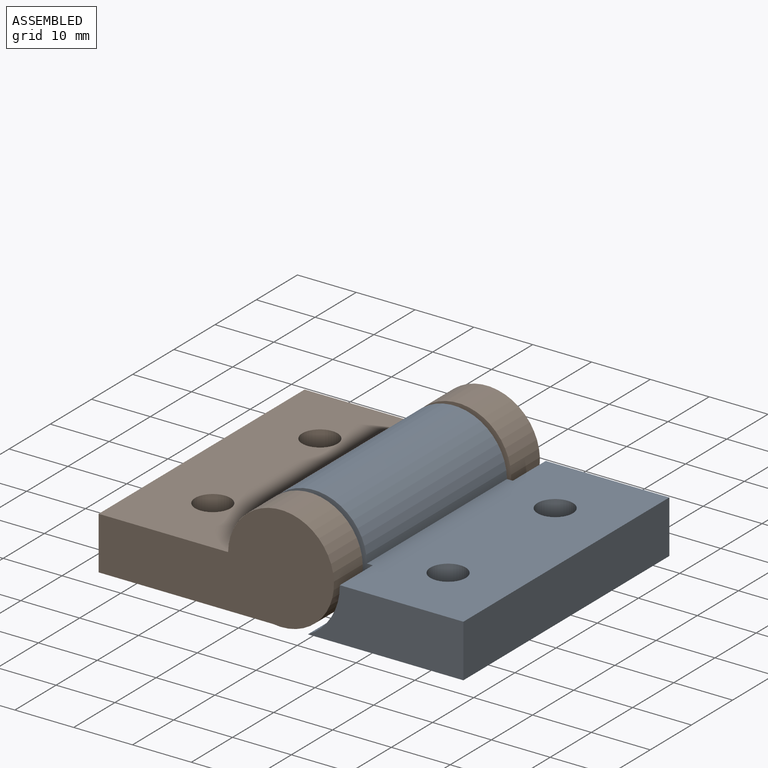
[diagram: assembled view]
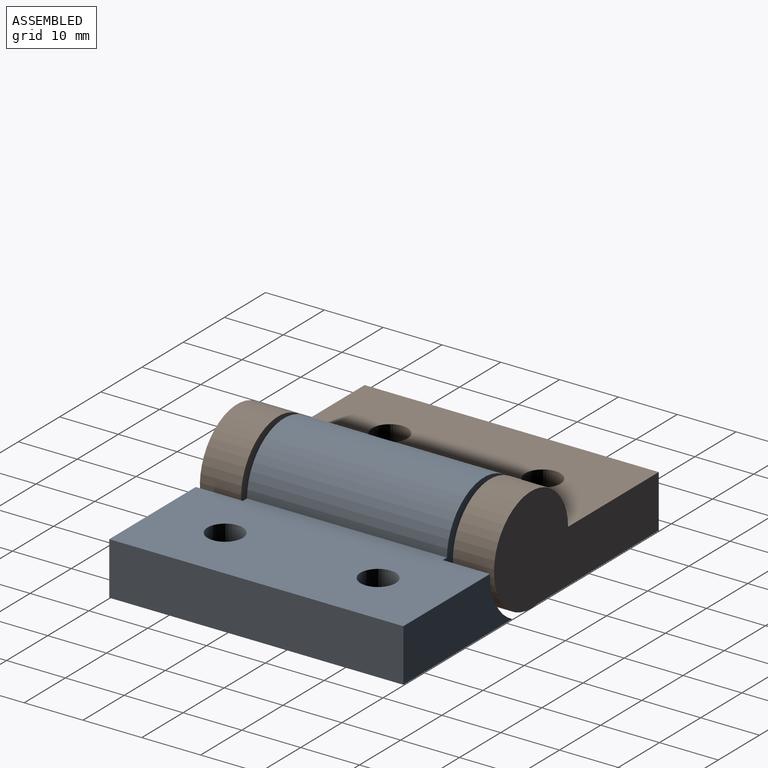
[diagram: assembled view, second angle]
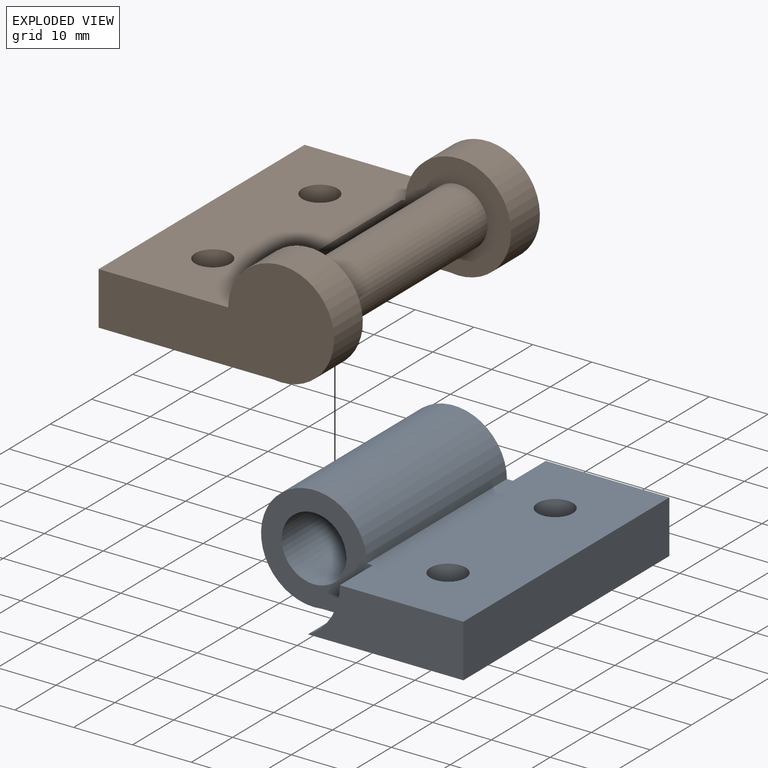
[diagram: exploded view]
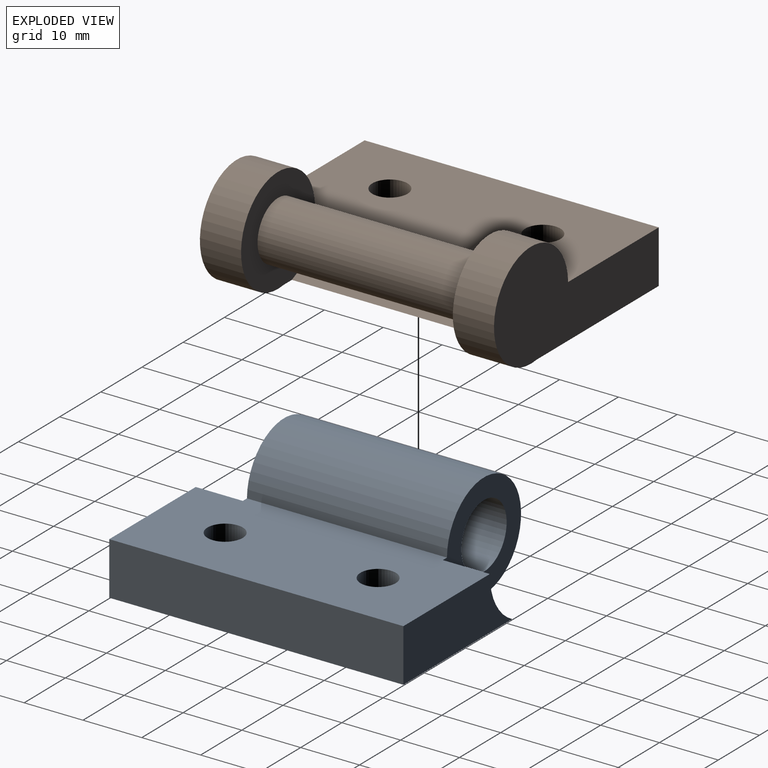
[diagram: exploded view, second angle]
ASSEMBLY  parts=2 mates=3
PART A: 13 faces, bbox 40x50x18 mm
  f0: cylinder r=9mm len=34mm, axis (0,-1,0), area 1485mm2, adj f2,f3,f9,f11
  f1: plane 26.43x9mm, normal (0,1,0), area 202.8mm2, adj f2,f3,f4,f10
  f2: plane 50x29.64mm, normal (0,0,-1), area 1374mm2, adj f0,f1,f4,f5,f6,f7,f8,f9
  f3: plane 50x22mm, normal (0,0,1), area 1027.5mm2, adj f0,f1,f4,f5,f6,f7,f8,f9
  f4: plane 50x9mm, normal (-1,0,0), area 450mm2, adj f1,f2,f3,f5
  f5: plane 26.43x9mm, normal (0,-1,0), area 202.8mm2, adj f2,f3,f4,f8
  f6: cylinder r=3mm len=9mm, axis (0,0,1), area 169.6mm2, adj f2,f3
  f7: cylinder r=3mm len=9mm, axis (0,0,1), area 169.6mm2, adj f2,f3
  f8: cylinder r=10mm len=9mm, axis (0,-1,0), area 88.5mm2, adj f2,f3,f5,f9
  f9: plane 19x18mm, normal (0,-1,0), area 171.2mm2, adj f0,f2,f3,f8,f12
  f10: cylinder r=10mm len=9mm, axis (0,1,0), area 88.5mm2, adj f1,f2,f3,f11
  f11: plane 19x18mm, normal (0,1,0), area 171.2mm2, adj f0,f2,f3,f10,f12
  f12: cylinder r=5.5mm len=34mm, axis (0,1,0), area 1175mm2, adj f9,f11
PART B: 13 faces, bbox 40x50x18 mm
  f0: plane 50x29.64mm, normal (0,0,-1), area 1354.4mm2, adj f1,f3,f4,f5,f6,f7,f8,f10
  f1: cylinder r=9mm len=18mm, axis (0,-1,0), area 305.7mm2, adj f0,f2,f5,f11
  f2: plane 50x22mm, normal (0,0,1), area 1025.5mm2, adj f1,f3,f4,f5,f6,f7,f8,f10
  f3: cylinder r=9mm len=18mm, axis (0,-1,0), area 305.7mm2, adj f0,f2,f6,f12
  f4: plane 50x9mm, normal (-1,0,0), area 450mm2, adj f0,f2,f5,f6
  f5: plane 40x18mm, normal (0,1,0), area 469mm2, adj f0,f1,f2,f4
  f6: plane 40x18mm, normal (0,-1,0), area 469mm2, adj f0,f2,f3,f4
  f7: cylinder r=3mm len=9mm, axis (0,0,1), area 169.6mm2, adj f0,f2
  f8: cylinder r=3mm len=9mm, axis (0,0,1), area 169.6mm2, adj f0,f2
  f9: cylinder r=5mm len=36mm, axis (0,-1,0), area 1131mm2, adj f11,f12
  f10: cylinder r=9.5mm len=36mm, axis (0,-1,0), area 418.3mm2, adj f0,f2,f11,f12
  f11: plane 18.5x18mm, normal (0,-1,0), area 182mm2, adj f0,f1,f2,f9,f10
  f12: plane 18.5x18mm, normal (0,1,0), area 182mm2, adj f0,f2,f3,f9,f10
PLACE A rot(axis=(0,0,1),180deg) t=(47.19,31.5,9)mm
PLACE B t=(-14.81,-18.5,9)mm fixed
MATE planar B.f0 <-> A.f2  axis (0,0,-1) through (-0.56,6.5,9)mm
MATE planar A.f1 <-> B.f6  axis (0,-1,0) through (35.87,-18.5,13.33)mm
MATE revolute B.f1 <-> A.f0  axis (0,-1,0) through (16.19,6.5,17.89)mm
